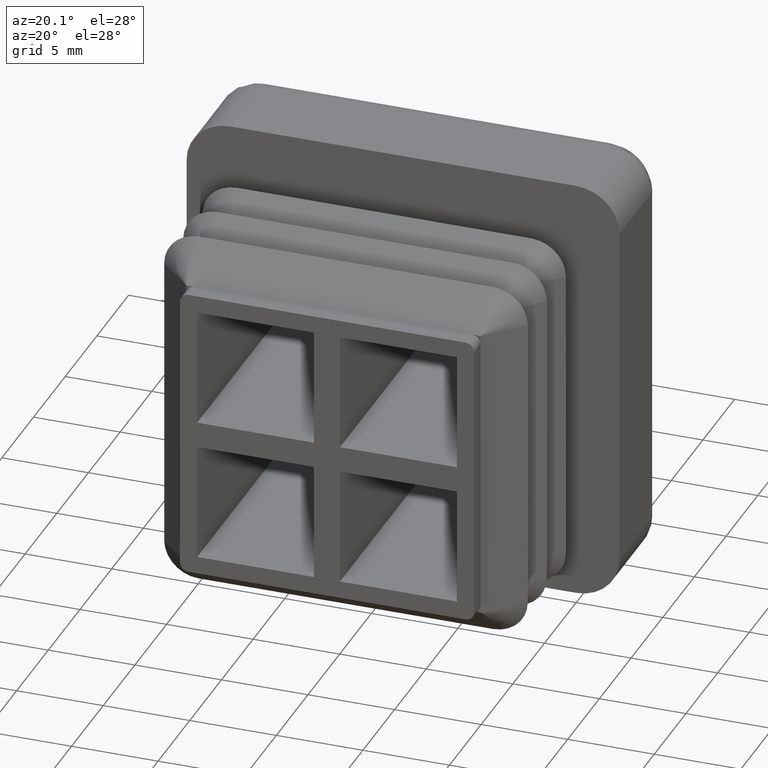
[diagram: clean part render]
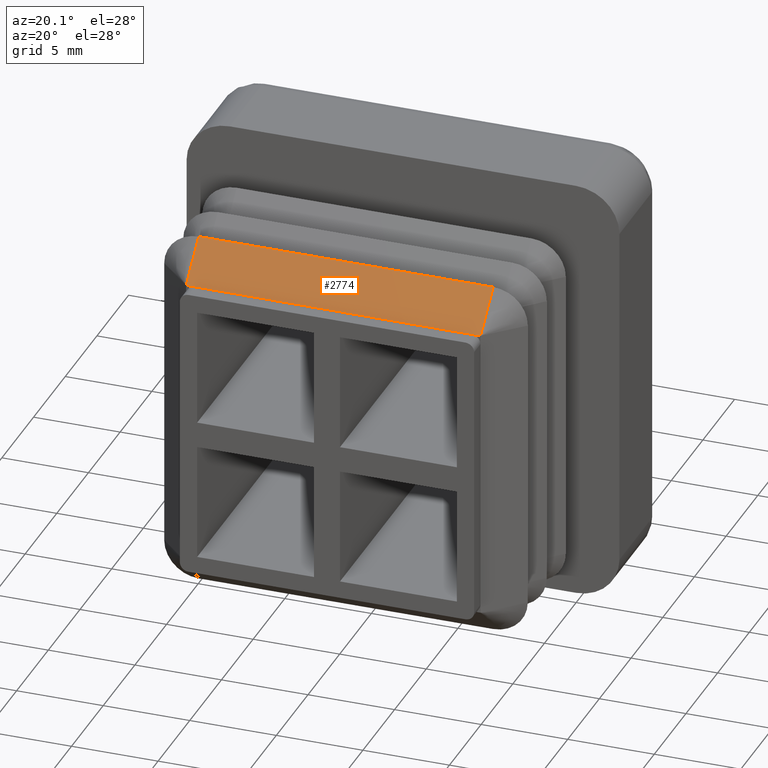
[diagram: same view with one face highlighted and labeled with its STEP entity id]
A machine part, auxiliary view. The second image highlights one B-rep face of the part: STEP entity #2774.
In plain terms, the highlighted planar face has unit normal (0, -0.7071, 0.7071).
Its self-contained STEP definition (entity closure, byte-faithful):
#288=CARTESIAN_POINT('',(8.0,-11.0,8.499999999999996));
#289=VERTEX_POINT('',#288);
#299=CARTESIAN_POINT('',(8.499999999999995,-11.0,8.499999999999993));
#300=VERTEX_POINT('',#299);
#307=CARTESIAN_POINT('',(8.499999999999993,-11.0,8.499999999999989));
#308=DIRECTION('',(-1.0,0.0,0.0));
#309=VECTOR('',#308,0.499999999999993);
#310=LINE('',#307,#309);
#311=EDGE_CURVE('',#300,#289,#310,.T.);
#323=CARTESIAN_POINT('',(-7.999999999999995,-11.0,8.499999999999996));
#324=VERTEX_POINT('',#323);
#332=CARTESIAN_POINT('',(-8.499999999999991,-11.0,8.499999999999993));
#333=VERTEX_POINT('',#332);
#334=CARTESIAN_POINT('',(-7.999999999999995,-11.0,8.499999999999989));
#335=DIRECTION('',(-1.0,0.0,0.0));
#336=VECTOR('',#335,0.499999999999995);
#337=LINE('',#334,#336);
#338=EDGE_CURVE('',#324,#333,#337,.T.);
#2410=CARTESIAN_POINT('',(-8.499999999999989,-9.0,10.499999999999996));
#2411=VERTEX_POINT('',#2410);
#2419=CARTESIAN_POINT('',(8.499999999999989,-9.0,10.499999999999996));
#2420=VERTEX_POINT('',#2419);
#2421=CARTESIAN_POINT('',(-8.499999999999989,-9.0,10.499999999999996));
#2422=DIRECTION('',(1.0,0.0,0.0));
#2423=VECTOR('',#2422,16.999999999999979);
#2424=LINE('',#2421,#2423);
#2425=EDGE_CURVE('',#2411,#2420,#2424,.T.);
#2527=CARTESIAN_POINT('',(-7.999999999999995,-11.0,8.499999999999996));
#2528=DIRECTION('',(1.0,0.0,0.0));
#2529=VECTOR('',#2528,15.999999999999993);
#2530=LINE('',#2527,#2529);
#2531=EDGE_CURVE('',#324,#289,#2530,.T.);
#2720=CARTESIAN_POINT('',(-8.499999999999989,-8.999999999999996,10.499999999999993));
#2721=DIRECTION('',(0.0,-0.707106781186546,-0.707106781186549));
#2722=VECTOR('',#2721,2.828427124746190);
#2723=LINE('',#2720,#2722);
#2724=EDGE_CURVE('',#2411,#333,#2723,.T.);
#2756=CARTESIAN_POINT('',(-9.349999999999989,-8.899999999999997,10.599999999999994));
#2757=DIRECTION('',(0.0,-0.707106781186549,0.707106781186546));
#2758=DIRECTION('',(0.0,-0.707106781186546,-0.707106781186549));
#2759=AXIS2_PLACEMENT_3D('',#2756,#2757,#2758);
#2760=PLANE('',#2759);
#2761=ORIENTED_EDGE('',*,*,#2531,.T.);
#2762=ORIENTED_EDGE('',*,*,#311,.F.);
#2763=CARTESIAN_POINT('',(8.499999999999989,-8.999999999999996,10.499999999999993));
#2764=DIRECTION('',(5.024296E-015,-0.707106781186546,-0.707106781186549));
#2765=VECTOR('',#2764,2.828427124746195);
#2766=LINE('',#2763,#2765);
#2767=EDGE_CURVE('',#2420,#300,#2766,.T.);
#2768=ORIENTED_EDGE('',*,*,#2767,.F.);
#2769=ORIENTED_EDGE('',*,*,#2425,.F.);
#2770=ORIENTED_EDGE('',*,*,#2724,.T.);
#2771=ORIENTED_EDGE('',*,*,#338,.F.);
#2772=EDGE_LOOP('',(#2761,#2762,#2768,#2769,#2770,#2771));
#2773=FACE_OUTER_BOUND('',#2772,.T.);
#2774=ADVANCED_FACE('',(#2773),#2760,.T.);